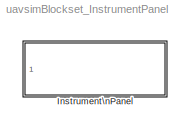
MODEL uavsimBlockset_InstrumentPanel
KIND library
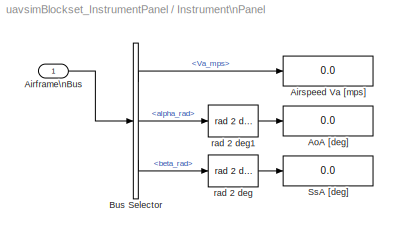
BLOCK [SubSystem] Instrument\nPanel
  FunctionWithSeparateData = off
  MaskHideContents = off
  MinAlgLoopOccurrences = off
  Opaque = off
  Ports = [1]
  PropExecContextOutsideSubsystem = off
  RTWSystemCode = Auto
  RequestExecContextInheritance = off
  SID = 2238
BLOCK [Inport] Instrument\nPanel/Airframe\nBus
  IconDisplay = Port number
  OutDataTypeStr = Bus: Airframe
  SID = 2239
BLOCK [Display] Instrument\nPanel/Airspeed Va [mps]
  Decimation = 1
  Lockdown = off
  Ports = [1]
  SID = 2242
BLOCK [Display] Instrument\nPanel/AoA [deg]
  Decimation = 1
  Lockdown = off
  Ports = [1]
  SID = 4427
BLOCK [BusSelector] Instrument\nPanel/Bus Selector
  OutputSignals = Aero.Va_mps,Aero.alpha_rad,Aero.beta_rad
  Ports = [1, 3]
  SID = 2241
BLOCK [Display] Instrument\nPanel/SsA [deg]
  Decimation = 1
  Lockdown = off
  Ports = [1]
  SID = 4428
BLOCK [Reference] Instrument\nPanel/rad 2 deg  REF=aerosimlib/Unit Conversion/Angular position/rad 2 deg
  Ports = [1, 1]
  SID = 4429
  SourceBlock = aerosimlib/Unit Conversion/Angular position/rad 2 deg
  SourceType = Radians to degrees
BLOCK [Reference] Instrument\nPanel/rad 2 deg1  REF=aerosimlib/Unit Conversion/Angular position/rad 2 deg
  Ports = [1, 1]
  SID = 4430
  SourceBlock = aerosimlib/Unit Conversion/Angular position/rad 2 deg
  SourceType = Radians to degrees
LINE Instrument\nPanel/Airframe\nBus:1 -> Instrument\nPanel/Bus Selector:1
LINE Instrument\nPanel/Bus Selector:1 -> Instrument\nPanel/Airspeed Va [mps]:1
LINE Instrument\nPanel/Bus Selector:2 -> Instrument\nPanel/rad 2 deg1:1
LINE Instrument\nPanel/Bus Selector:3 -> Instrument\nPanel/rad 2 deg:1
LINE Instrument\nPanel/rad 2 deg1:1 -> Instrument\nPanel/AoA [deg]:1
LINE Instrument\nPanel/rad 2 deg:1 -> Instrument\nPanel/SsA [deg]:1
